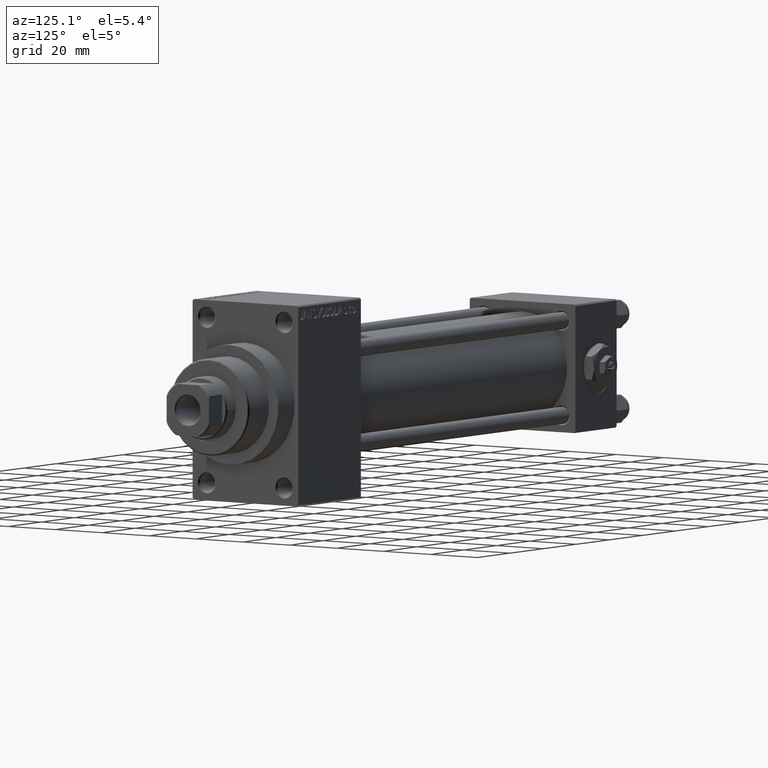
[diagram: clean part render]
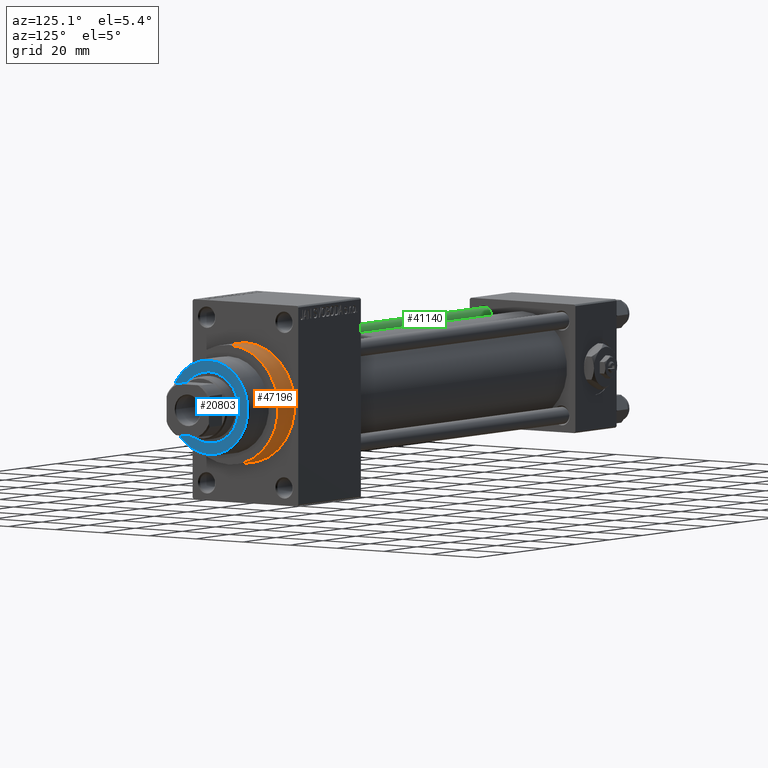
[diagram: same view with three faces highlighted in distinct colors, each labeled with its STEP entity id]
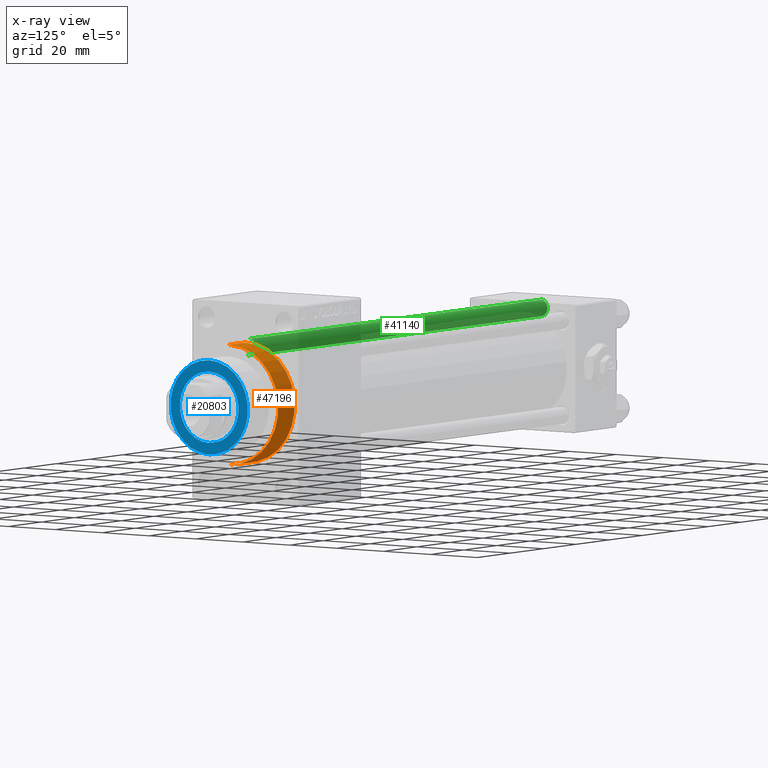
[diagram: x-ray of the same camera — body ghosted, the three highlighted faces saturated]
A machine part, auxiliary view with three faces highlighted in distinct colors.
The next image is the same camera in x-ray (body ghosted, the three faces saturated) — at least one of them is partly hidden behind the body in this view.
Their STEP definitions:

[orange] entity #47196 — the highlighted cylindrical surface (partial cylindrical patch) has radius 21 mm, axis along (-1, -0, -0).
#146 = DIRECTION ( 'NONE',  ( -1.000000000000000000, -0.000000000000000000, -0.000000000000000000 ) ) ;
#1130 = VERTEX_POINT ( 'NONE', #4479 ) ;
#2953 = ORIENTED_EDGE ( 'NONE', *, *, #6090, .T. ) ;
#3347 = LINE ( 'NONE', #14166, #34738 ) ;
#4479 = CARTESIAN_POINT ( 'NONE',  ( 203.0000000000000000, 0.000000000000000000, 21.00000000000000000 ) ) ;
#6090 = EDGE_CURVE ( 'NONE', #24662, #35270, #3347, .T. ) ;
#6142 = FACE_OUTER_BOUND ( 'NONE', #47007, .T. ) ;
#7353 = CARTESIAN_POINT ( 'NONE',  ( 203.0000000000000000, 0.000000000000000000, 21.00000000000000000 ) ) ;
#8663 = ORIENTED_EDGE ( 'NONE', *, *, #47690, .F. ) ;
#11484 = EDGE_CURVE ( 'NONE', #35270, #42963, #34917, .T. ) ;
#14166 = CARTESIAN_POINT ( 'NONE',  ( 203.0000000000000000, 2.571758278209441661E-15, -21.00000000000000000 ) ) ;
#14673 = CIRCLE ( 'NONE', #24844, 21.00000000000000000 ) ;
#21863 = CYLINDRICAL_SURFACE ( 'NONE', #31884, 21.00000000000000000 ) ;
#23803 = DIRECTION ( 'NONE',  ( -1.000000000000000000, -0.000000000000000000, -0.000000000000000000 ) ) ;
#24662 = VERTEX_POINT ( 'NONE', #47322 ) ;
#24697 = DIRECTION ( 'NONE',  ( 0.000000000000000000, 0.000000000000000000, -1.000000000000000000 ) ) ;
#24844 = AXIS2_PLACEMENT_3D ( 'NONE', #40337, #29775, #37133 ) ;
#28985 = DIRECTION ( 'NONE',  ( -1.000000000000000000, -0.000000000000000000, -0.000000000000000000 ) ) ;
#29775 = DIRECTION ( 'NONE',  ( 1.000000000000000000, 0.000000000000000000, 0.000000000000000000 ) ) ;
#30986 = AXIS2_PLACEMENT_3D ( 'NONE', #43361, #32298, #24697 ) ;
#31884 = AXIS2_PLACEMENT_3D ( 'NONE', #33138, #28985, #39786 ) ;
#32298 = DIRECTION ( 'NONE',  ( 1.000000000000000000, 0.000000000000000000, 0.000000000000000000 ) ) ;
#33138 = CARTESIAN_POINT ( 'NONE',  ( 203.0000000000000000, 0.000000000000000000, 0.000000000000000000 ) ) ;
#34738 = VECTOR ( 'NONE', #146, 1000.000000000000000 ) ;
#34917 = CIRCLE ( 'NONE', #30986, 21.00000000000000000 ) ;
#35270 = VERTEX_POINT ( 'NONE', #47644 ) ;
#37133 = DIRECTION ( 'NONE',  ( 0.000000000000000000, 0.000000000000000000, -1.000000000000000000 ) ) ;
#37151 = EDGE_CURVE ( 'NONE', #1130, #42963, #40997, .T. ) ;
#37603 = ORIENTED_EDGE ( 'NONE', *, *, #11484, .T. ) ;
#39786 = DIRECTION ( 'NONE',  ( 0.000000000000000000, 0.000000000000000000, 1.000000000000000000 ) ) ;
#40024 = CARTESIAN_POINT ( 'NONE',  ( 193.0000000000000000, 0.000000000000000000, 21.00000000000000000 ) ) ;
#40337 = CARTESIAN_POINT ( 'NONE',  ( 203.0000000000000000, 0.000000000000000000, 0.000000000000000000 ) ) ;
#40997 = LINE ( 'NONE', #7353, #41861 ) ;
#41861 = VECTOR ( 'NONE', #23803, 1000.000000000000000 ) ;
#42963 = VERTEX_POINT ( 'NONE', #40024 ) ;
#43361 = CARTESIAN_POINT ( 'NONE',  ( 193.0000000000000000, 0.000000000000000000, 0.000000000000000000 ) ) ;
#47007 = EDGE_LOOP ( 'NONE', ( #8663, #2953, #37603, #48067 ) ) ;
#47196 = ADVANCED_FACE ( 'NONE', ( #6142 ), #21863, .T. ) ;
#47322 = CARTESIAN_POINT ( 'NONE',  ( 203.0000000000000000, 2.571758278209441661E-15, -21.00000000000000000 ) ) ;
#47644 = CARTESIAN_POINT ( 'NONE',  ( 193.0000000000000000, 2.571758278209441661E-15, -21.00000000000000000 ) ) ;
#47690 = EDGE_CURVE ( 'NONE', #24662, #1130, #14673, .T. ) ;
#48067 = ORIENTED_EDGE ( 'NONE', *, *, #37151, .F. ) ;

[blue] entity #20803 — the highlighted planar face has unit normal (1, -0, -0).
#1305 = EDGE_LOOP ( 'NONE', ( #35884, #12310 ) ) ;
#1953 = DIRECTION ( 'NONE',  ( 0.000000000000000000, 0.000000000000000000, 1.000000000000000000 ) ) ;
#2137 = DIRECTION ( 'NONE',  ( 0.000000000000000000, 0.000000000000000000, 1.000000000000000000 ) ) ;
#2607 = DIRECTION ( 'NONE',  ( 1.000000000000000000, 0.000000000000000000, 0.000000000000000000 ) ) ;
#3013 = CARTESIAN_POINT ( 'NONE',  ( 0.000000000000000000, 0.000000000000000000, 55.26000000000000512 ) ) ;
#6068 = CARTESIAN_POINT ( 'NONE',  ( 16.50000000000001421, 2.051283388571817281E-15, 55.26000000000000512 ) ) ;
#6979 = EDGE_LOOP ( 'NONE', ( #38593, #24030 ) ) ;
#9073 = AXIS2_PLACEMENT_3D ( 'NONE', #36264, #2137, #2607 ) ;
#9333 = FACE_OUTER_BOUND ( 'NONE', #1305, .T. ) ;
#12310 = ORIENTED_EDGE ( 'NONE', *, *, #31311, .T. ) ;
#13265 = DIRECTION ( 'NONE',  ( 1.000000000000000000, 0.000000000000000000, -0.000000000000000000 ) ) ;
#14311 = DIRECTION ( 'NONE',  ( 0.000000000000000000, 0.000000000000000000, 1.000000000000000000 ) ) ;
#17130 = AXIS2_PLACEMENT_3D ( 'NONE', #48225, #29562, #36687 ) ;
#20803 = ADVANCED_FACE ( 'NONE', ( #42982, #9333 ), #32160, .T. ) ;
#23414 = CIRCLE ( 'NONE', #36740, 12.50000000000000000 ) ;
#23475 = VERTEX_POINT ( 'NONE', #6068 ) ;
#24030 = ORIENTED_EDGE ( 'NONE', *, *, #26333, .F. ) ;
#25017 = EDGE_CURVE ( 'NONE', #41910, #23475, #27303, .T. ) ;
#25820 = DIRECTION ( 'NONE',  ( 0.000000000000000000, 0.000000000000000000, 1.000000000000000000 ) ) ;
#26333 = EDGE_CURVE ( 'NONE', #41942, #39453, #23414, .T. ) ;
#27303 = CIRCLE ( 'NONE', #17130, 16.50000000000001421 ) ;
#27505 = CARTESIAN_POINT ( 'NONE',  ( -16.50000000000001421, 0.000000000000000000, 55.26000000000000512 ) ) ;
#29562 = DIRECTION ( 'NONE',  ( 0.000000000000000000, 0.000000000000000000, 1.000000000000000000 ) ) ;
#31311 = EDGE_CURVE ( 'NONE', #23475, #41910, #33044, .T. ) ;
#31920 = CARTESIAN_POINT ( 'NONE',  ( -12.50000000000000000, 1.530808498934191521E-15, 55.26000000000000512 ) ) ;
#32160 = PLANE ( 'NONE',  #36707 ) ;
#32353 = CARTESIAN_POINT ( 'NONE',  ( 12.50000000000000000, 0.000000000000000000, 55.26000000000000512 ) ) ;
#33044 = CIRCLE ( 'NONE', #41689, 16.50000000000001421 ) ;
#35610 = CARTESIAN_POINT ( 'NONE',  ( 0.000000000000000000, 0.000000000000000000, 55.26000000000000512 ) ) ;
#35884 = ORIENTED_EDGE ( 'NONE', *, *, #25017, .T. ) ;
#36264 = CARTESIAN_POINT ( 'NONE',  ( 0.000000000000000000, 0.000000000000000000, 55.26000000000000512 ) ) ;
#36687 = DIRECTION ( 'NONE',  ( 1.000000000000000000, 0.000000000000000000, 0.000000000000000000 ) ) ;
#36707 = AXIS2_PLACEMENT_3D ( 'NONE', #35610, #1953, #13265 ) ;
#36740 = AXIS2_PLACEMENT_3D ( 'NONE', #41024, #25820, #47933 ) ;
#38078 = CIRCLE ( 'NONE', #9073, 12.50000000000000000 ) ;
#38593 = ORIENTED_EDGE ( 'NONE', *, *, #41061, .F. ) ;
#39453 = VERTEX_POINT ( 'NONE', #32353 ) ;
#41024 = CARTESIAN_POINT ( 'NONE',  ( 0.000000000000000000, 0.000000000000000000, 55.26000000000000512 ) ) ;
#41061 = EDGE_CURVE ( 'NONE', #39453, #41942, #38078, .T. ) ;
#41689 = AXIS2_PLACEMENT_3D ( 'NONE', #3013, #14311, #44271 ) ;
#41910 = VERTEX_POINT ( 'NONE', #27505 ) ;
#41942 = VERTEX_POINT ( 'NONE', #31920 ) ;
#42982 = FACE_BOUND ( 'NONE', #6979, .T. ) ;
#44271 = DIRECTION ( 'NONE',  ( 1.000000000000000000, 0.000000000000000000, 0.000000000000000000 ) ) ;
#47933 = DIRECTION ( 'NONE',  ( 1.000000000000000000, 0.000000000000000000, 0.000000000000000000 ) ) ;
#48225 = CARTESIAN_POINT ( 'NONE',  ( 0.000000000000000000, 0.000000000000000000, 55.26000000000000512 ) ) ;

[green] entity #41140 — the highlighted cylindrical surface (edge-blend (fillet) strip) has radius 3 mm, axis along (1, 0, 0).
#129 = DIRECTION ( 'NONE',  ( -0.000000000000000000, -0.000000000000000000, -1.000000000000000000 ) ) ;
#866 = EDGE_CURVE ( 'NONE', #23905, #19425, #14073, .T. ) ;
#3653 = EDGE_LOOP ( 'NONE', ( #5550, #20314, #15509, #31953 ) ) ;
#5550 = ORIENTED_EDGE ( 'NONE', *, *, #12489, .F. ) ;
#6324 = DIRECTION ( 'NONE',  ( 1.000000000000000000, 0.000000000000000000, 0.000000000000000000 ) ) ;
#7262 = DIRECTION ( 'NONE',  ( -1.000000000000000000, 0.000000000000000000, 0.000000000000000000 ) ) ;
#10959 = FACE_OUTER_BOUND ( 'NONE', #3653, .T. ) ;
#11733 = LINE ( 'NONE', #45125, #16024 ) ;
#12489 = EDGE_CURVE ( 'NONE', #32091, #19689, #11733, .T. ) ;
#14073 = LINE ( 'NONE', #32737, #36504 ) ;
#15426 = AXIS2_PLACEMENT_3D ( 'NONE', #43906, #19694, #6324 ) ;
#15509 = ORIENTED_EDGE ( 'NONE', *, *, #866, .T. ) ;
#16024 = VECTOR ( 'NONE', #34323, 1000.000000000000000 ) ;
#19425 = VERTEX_POINT ( 'NONE', #33222 ) ;
#19689 = VERTEX_POINT ( 'NONE', #47435 ) ;
#19694 = DIRECTION ( 'NONE',  ( -0.000000000000000000, -0.000000000000000000, 1.000000000000000000 ) ) ;
#20314 = ORIENTED_EDGE ( 'NONE', *, *, #48312, .T. ) ;
#20871 = AXIS2_PLACEMENT_3D ( 'NONE', #22738, #129, #7262 ) ;
#20932 = CIRCLE ( 'NONE', #15426, 3.000000000000000444 ) ;
#22738 = CARTESIAN_POINT ( 'NONE',  ( 0.000000000000000000, 0.000000000000000000, 178.0000000000000000 ) ) ;
#23905 = VERTEX_POINT ( 'NONE', #40890 ) ;
#24767 = CARTESIAN_POINT ( 'NONE',  ( 0.000000000000000000, 0.000000000000000000, 177.5000000000000000 ) ) ;
#26415 = CIRCLE ( 'NONE', #36619, 3.000000000000000444 ) ;
#27896 = CARTESIAN_POINT ( 'NONE',  ( 3.000000000000000444, 3.673940397442060361E-16, 177.5000000000000000 ) ) ;
#29174 = DIRECTION ( 'NONE',  ( 1.000000000000000000, 0.000000000000000000, 0.000000000000000000 ) ) ;
#31953 = ORIENTED_EDGE ( 'NONE', *, *, #44224, .T. ) ;
#32091 = VERTEX_POINT ( 'NONE', #27896 ) ;
#32737 = CARTESIAN_POINT ( 'NONE',  ( -3.000000000000000444, 0.000000000000000000, 178.0000000000000000 ) ) ;
#33216 = DIRECTION ( 'NONE',  ( -0.000000000000000000, -0.000000000000000000, -1.000000000000000000 ) ) ;
#33222 = CARTESIAN_POINT ( 'NONE',  ( -3.000000000000000444, 0.000000000000000000, 0.5000000000000281997 ) ) ;
#33782 = CYLINDRICAL_SURFACE ( 'NONE', #20871, 3.000000000000000444 ) ;
#34323 = DIRECTION ( 'NONE',  ( -0.000000000000000000, -0.000000000000000000, -1.000000000000000000 ) ) ;
#36504 = VECTOR ( 'NONE', #33216, 1000.000000000000000 ) ;
#36619 = AXIS2_PLACEMENT_3D ( 'NONE', #24767, #47847, #29174 ) ;
#40890 = CARTESIAN_POINT ( 'NONE',  ( -3.000000000000000444, 0.000000000000000000, 177.5000000000000000 ) ) ;
#41140 = ADVANCED_FACE ( 'NONE', ( #10959 ), #33782, .T. ) ;
#43906 = CARTESIAN_POINT ( 'NONE',  ( 0.000000000000000000, 0.000000000000000000, 0.5000000000000281997 ) ) ;
#44224 = EDGE_CURVE ( 'NONE', #19425, #19689, #20932, .T. ) ;
#45125 = CARTESIAN_POINT ( 'NONE',  ( 3.000000000000000444, 3.673940397442060361E-16, 178.0000000000000000 ) ) ;
#47435 = CARTESIAN_POINT ( 'NONE',  ( 3.000000000000000444, 3.673940397442060361E-16, 0.5000000000000281997 ) ) ;
#47847 = DIRECTION ( 'NONE',  ( 0.000000000000000000, 0.000000000000000000, -1.000000000000000000 ) ) ;
#48312 = EDGE_CURVE ( 'NONE', #32091, #23905, #26415, .T. ) ;